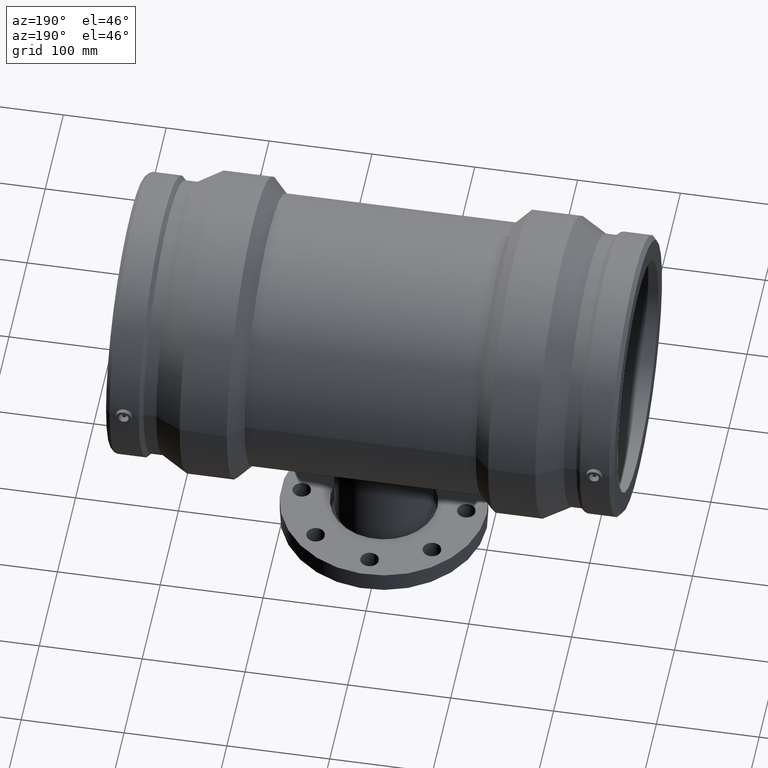
[diagram: clean part render]
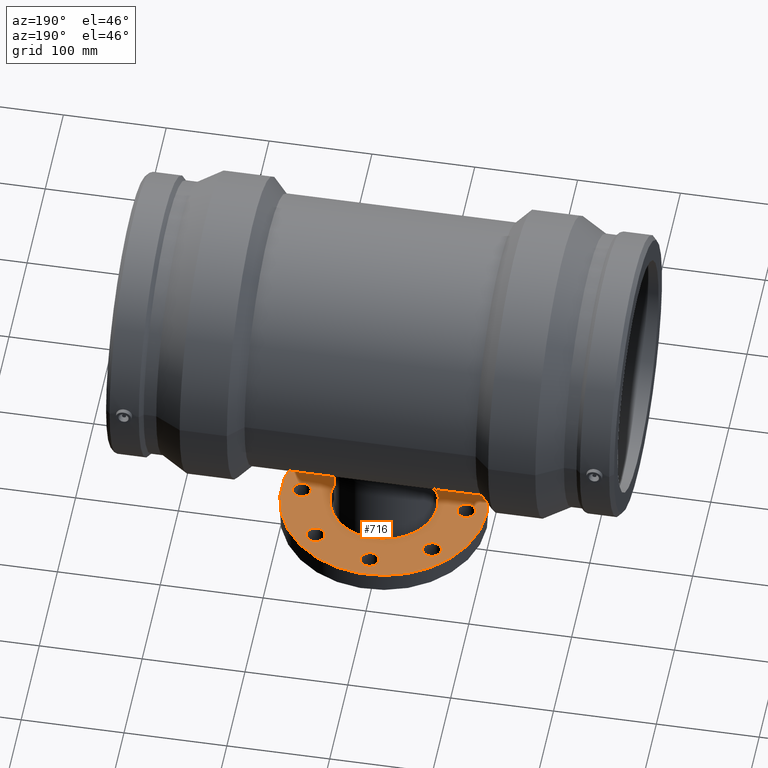
[diagram: same view with one face highlighted and labeled with its STEP entity id]
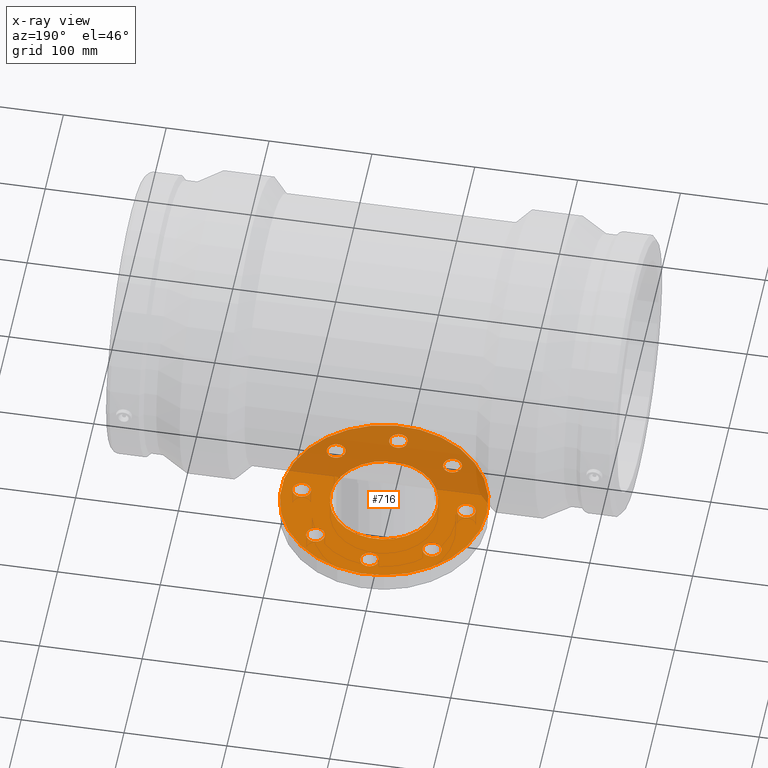
[diagram: x-ray of the same camera — body ghosted, the highlighted face saturated]
A machine part, auxiliary view. The second image highlights one B-rep face of the part: STEP entity #716.
The next image is the same camera in x-ray: the body ghosted, the highlighted face saturated — about 41% of this face is hidden behind the body in this view.
In plain terms, the highlighted planar face has unit normal (0, 0, 1).
Its self-contained STEP definition (entity closure, byte-faithful):
#32=PLANE('',#801);
#60=FACE_BOUND('',#309,.T.);
#61=FACE_BOUND('',#310,.T.);
#62=FACE_BOUND('',#311,.T.);
#63=FACE_BOUND('',#312,.T.);
#64=FACE_BOUND('',#313,.T.);
#65=FACE_BOUND('',#314,.T.);
#66=FACE_BOUND('',#315,.T.);
#67=FACE_BOUND('',#316,.T.);
#68=FACE_BOUND('',#317,.T.);
#121=CIRCLE('',#762,9.);
#123=CIRCLE('',#765,9.);
#125=CIRCLE('',#768,9.);
#127=CIRCLE('',#771,9.);
#129=CIRCLE('',#774,9.);
#131=CIRCLE('',#777,9.);
#133=CIRCLE('',#780,9.);
#135=CIRCLE('',#783,9.);
#144=CIRCLE('',#800,52.);
#145=CIRCLE('',#802,100.);
#232=FACE_OUTER_BOUND('',#308,.T.);
#308=EDGE_LOOP('',(#594));
#309=EDGE_LOOP('',(#595));
#310=EDGE_LOOP('',(#596));
#311=EDGE_LOOP('',(#597));
#312=EDGE_LOOP('',(#598));
#313=EDGE_LOOP('',(#599));
#314=EDGE_LOOP('',(#600));
#315=EDGE_LOOP('',(#601));
#316=EDGE_LOOP('',(#602));
#317=EDGE_LOOP('',(#603));
#421=VERTEX_POINT('',#1403);
#423=VERTEX_POINT('',#1408);
#425=VERTEX_POINT('',#1413);
#427=VERTEX_POINT('',#1418);
#429=VERTEX_POINT('',#1423);
#431=VERTEX_POINT('',#1428);
#433=VERTEX_POINT('',#1433);
#435=VERTEX_POINT('',#1438);
#445=VERTEX_POINT('',#1531);
#446=VERTEX_POINT('',#1534);
#491=EDGE_CURVE('',#421,#421,#121,.T.);
#493=EDGE_CURVE('',#423,#423,#123,.T.);
#495=EDGE_CURVE('',#425,#425,#125,.T.);
#497=EDGE_CURVE('',#427,#427,#127,.T.);
#499=EDGE_CURVE('',#429,#429,#129,.T.);
#501=EDGE_CURVE('',#431,#431,#131,.T.);
#503=EDGE_CURVE('',#433,#433,#133,.T.);
#505=EDGE_CURVE('',#435,#435,#135,.T.);
#515=EDGE_CURVE('',#445,#445,#144,.T.);
#516=EDGE_CURVE('',#446,#446,#145,.T.);
#594=ORIENTED_EDGE('',*,*,#516,.F.);
#595=ORIENTED_EDGE('',*,*,#491,.T.);
#596=ORIENTED_EDGE('',*,*,#493,.T.);
#597=ORIENTED_EDGE('',*,*,#495,.T.);
#598=ORIENTED_EDGE('',*,*,#497,.T.);
#599=ORIENTED_EDGE('',*,*,#499,.T.);
#600=ORIENTED_EDGE('',*,*,#501,.T.);
#601=ORIENTED_EDGE('',*,*,#503,.T.);
#602=ORIENTED_EDGE('',*,*,#505,.T.);
#603=ORIENTED_EDGE('',*,*,#515,.T.);
#716=ADVANCED_FACE('',(#232,#60,#61,#62,#63,#64,#65,#66,#67,#68),#32,.T.);
#762=AXIS2_PLACEMENT_3D('',#1404,#889,#890);
#765=AXIS2_PLACEMENT_3D('',#1409,#895,#896);
#768=AXIS2_PLACEMENT_3D('',#1414,#901,#902);
#771=AXIS2_PLACEMENT_3D('',#1419,#907,#908);
#774=AXIS2_PLACEMENT_3D('',#1424,#913,#914);
#777=AXIS2_PLACEMENT_3D('',#1429,#919,#920);
#780=AXIS2_PLACEMENT_3D('',#1434,#925,#926);
#783=AXIS2_PLACEMENT_3D('',#1439,#931,#932);
#800=AXIS2_PLACEMENT_3D('',#1532,#965,#966);
#801=AXIS2_PLACEMENT_3D('',#1533,#967,#968);
#802=AXIS2_PLACEMENT_3D('',#1535,#969,#970);
#889=DIRECTION('center_axis',(-1.22464679914735E-16,0.,-1.));
#890=DIRECTION('ref_axis',(0.707106781186547,0.707106781186548,0.));
#895=DIRECTION('center_axis',(-1.22464679914735E-16,0.,-1.));
#896=DIRECTION('ref_axis',(-1.2335811384724E-16,1.,0.));
#901=DIRECTION('center_axis',(-1.22464679914735E-16,0.,-1.));
#902=DIRECTION('ref_axis',(-0.707106781186548,0.707106781186547,0.));
#907=DIRECTION('center_axis',(-1.22464679914735E-16,0.,-1.));
#908=DIRECTION('ref_axis',(-1.,-1.2335811384724E-16,0.));
#913=DIRECTION('center_axis',(-1.22464679914735E-16,0.,-1.));
#914=DIRECTION('ref_axis',(-0.707106781186547,-0.707106781186548,0.));
#919=DIRECTION('center_axis',(-1.22464679914735E-16,0.,-1.));
#920=DIRECTION('ref_axis',(0.,-1.,0.));
#925=DIRECTION('center_axis',(-1.22464679914735E-16,0.,-1.));
#926=DIRECTION('ref_axis',(0.707106781186548,-0.707106781186547,0.));
#931=DIRECTION('center_axis',(-1.22464679914735E-16,0.,-1.));
#932=DIRECTION('ref_axis',(1.,0.,0.));
#965=DIRECTION('center_axis',(-1.22464679914735E-16,0.,-1.));
#966=DIRECTION('ref_axis',(1.,0.,-1.22464679914735E-16));
#967=DIRECTION('center_axis',(1.22464679914735E-16,0.,1.));
#968=DIRECTION('ref_axis',(1.,0.,0.));
#969=DIRECTION('center_axis',(-1.22464679914735E-16,0.,-1.));
#970=DIRECTION('ref_axis',(1.,0.,-1.22464679914735E-16));
#1403=CARTESIAN_POINT('',(-62.9325035256027,-62.9325035256027,-215.));
#1404=CARTESIAN_POINT('Origin',(-56.5685424949238,-56.5685424949238,-215.));
#1408=CARTESIAN_POINT('',(-8.07054171551684E-15,-89.,-215.));
#1409=CARTESIAN_POINT('Origin',(-1.69523259125181E-14,-80.,-215.));
#1413=CARTESIAN_POINT('',(62.9325035256027,-62.9325035256027,-215.));
#1414=CARTESIAN_POINT('Origin',(56.5685424949238,-56.5685424949238,-215.));
#1418=CARTESIAN_POINT('',(89.,2.49249097197077E-14,-215.));
#1419=CARTESIAN_POINT('Origin',(80.,7.16134132570516E-15,-215.));
#1423=CARTESIAN_POINT('',(62.9325035256027,62.9325035256027,-215.));
#1424=CARTESIAN_POINT('Origin',(56.5685424949238,56.5685424949238,-215.));
#1428=CARTESIAN_POINT('',(-1.69523259125181E-14,89.,-215.));
#1429=CARTESIAN_POINT('Origin',(-2.58341101095193E-14,80.,-215.));
#1433=CARTESIAN_POINT('',(-62.9325035256028,62.9325035256027,-215.));
#1434=CARTESIAN_POINT('Origin',(-56.5685424949238,56.5685424949238,-215.));
#1438=CARTESIAN_POINT('',(-89.,1.10218211923262E-15,-215.));
#1439=CARTESIAN_POINT('Origin',(-80.,0.,-215.));
#1531=CARTESIAN_POINT('',(-52.,0.,-215.));
#1532=CARTESIAN_POINT('Origin',(-2.63299061816681E-14,0.,-215.));
#1533=CARTESIAN_POINT('Origin',(-100.,0.,-215.));
#1534=CARTESIAN_POINT('',(-100.,0.,-215.));
#1535=CARTESIAN_POINT('Origin',(-2.63299061816681E-14,0.,-215.));